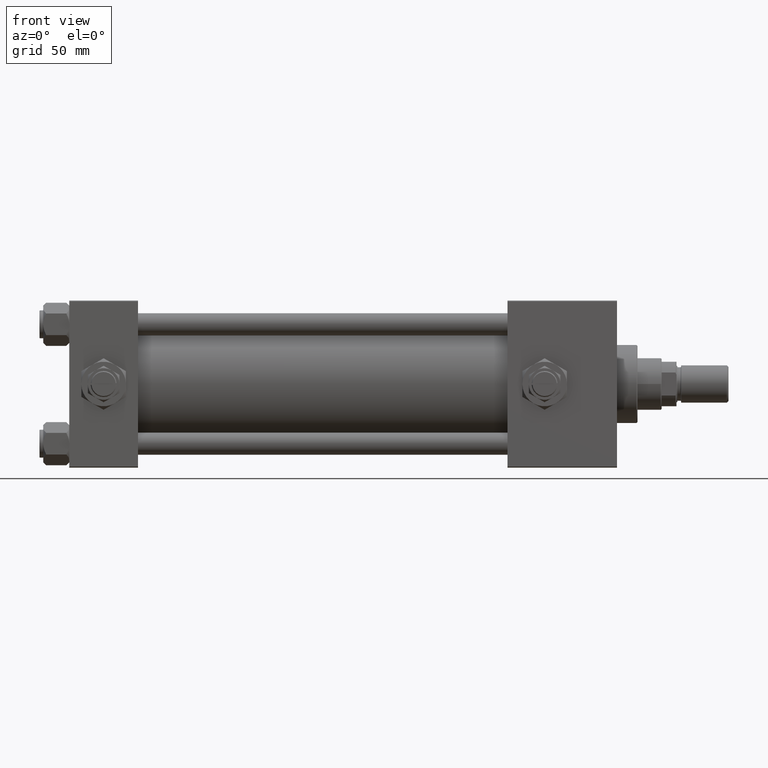
[diagram: clean part render]
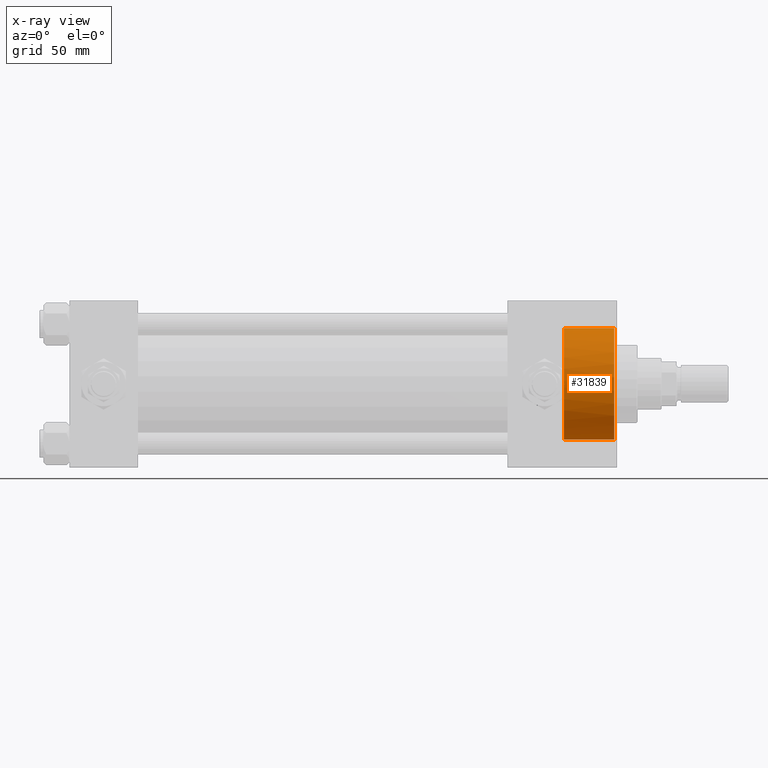
[diagram: x-ray — body ghosted, one internal face saturated and labeled with its STEP entity id]
A machine part, front view, then the same camera in x-ray: the body is ghosted and one INTERNAL B-rep face — a face not visible from any outside direction — is saturated and labeled: STEP entity #31839.
In plain terms, the highlighted cylindrical surface (partial cylindrical patch) has radius 30 mm, axis along (1, 0, 0).
Its self-contained STEP definition (entity closure, byte-faithful):
#211 = VERTEX_POINT ( 'NONE', #18865 ) ;
#1855 = AXIS2_PLACEMENT_3D ( 'NONE', #23550, #19545, #31843 ) ;
#1901 = VECTOR ( 'NONE', #18203, 1000.000000000000000 ) ;
#2330 = LINE ( 'NONE', #30181, #35492 ) ;
#4270 = DIRECTION ( 'NONE',  ( 0.000000000000000000, 0.000000000000000000, -1.000000000000000000 ) ) ;
#8178 = ORIENTED_EDGE ( 'NONE', *, *, #37019, .T. ) ;
#8541 = CARTESIAN_POINT ( 'NONE',  ( 266.3000000000000114, 0.000000000000000000, 0.000000000000000000 ) ) ;
#8814 = CYLINDRICAL_SURFACE ( 'NONE', #31918, 30.00000000000000000 ) ;
#8934 = AXIS2_PLACEMENT_3D ( 'NONE', #26214, #34506, #22211 ) ;
#9856 = CARTESIAN_POINT ( 'NONE',  ( 266.3000000000000114, -29.93759509379470529, 1.934011375354096840 ) ) ;
#12408 = B_SPLINE_CURVE_WITH_KNOTS ( 'NONE', 3,
 ( #19903, #51959, #36198, #31657, #39414 ),
 .UNSPECIFIED., .F., .F.,
 ( 4, 1, 4 ),
 ( 0.000000000000000000, 0.001934011375354099168, 0.003868022750708198336 ),
 .UNSPECIFIED. ) ;
#13359 = FACE_OUTER_BOUND ( 'NONE', #16168, .T. ) ;
#15498 = VERTEX_POINT ( 'NONE', #38951 ) ;
#15513 = ORIENTED_EDGE ( 'NONE', *, *, #45450, .T. ) ;
#16168 = EDGE_LOOP ( 'NONE', ( #35330, #8178, #43059, #39079, #25386, #15513 ) ) ;
#18203 = DIRECTION ( 'NONE',  ( 1.000000000000000000, -0.000000000000000000, -0.000000000000000000 ) ) ;
#18865 = CARTESIAN_POINT ( 'NONE',  ( 266.3000000000000114, -29.93759509379470529, -1.934011375354101059 ) ) ;
#19545 = DIRECTION ( 'NONE',  ( 1.000000000000000000, 0.000000000000000000, 0.000000000000000000 ) ) ;
#19827 = EDGE_CURVE ( 'NONE', #211, #23337, #28126, .T. ) ;
#19903 = CARTESIAN_POINT ( 'NONE',  ( 266.3000000000000114, -29.93759509379470529, -1.934011375354101059 ) ) ;
#21622 = VERTEX_POINT ( 'NONE', #47370 ) ;
#22211 = DIRECTION ( 'NONE',  ( 0.000000000000000000, 0.000000000000000000, -1.000000000000000000 ) ) ;
#23320 = CARTESIAN_POINT ( 'NONE',  ( 266.3000000000000114, 0.000000000000000000, -30.00000000000000000 ) ) ;
#23337 = VERTEX_POINT ( 'NONE', #23320 ) ;
#23550 = CARTESIAN_POINT ( 'NONE',  ( 293.5000000000000000, 0.000000000000000000, 0.000000000000000000 ) ) ;
#25386 = ORIENTED_EDGE ( 'NONE', *, *, #19827, .F. ) ;
#26214 = CARTESIAN_POINT ( 'NONE',  ( 266.3000000000000114, 0.000000000000000000, 0.000000000000000000 ) ) ;
#26361 = CARTESIAN_POINT ( 'NONE',  ( 293.5000000000000000, 0.000000000000000000, -30.00000000000000000 ) ) ;
#26742 = EDGE_CURVE ( 'NONE', #23337, #40574, #27268, .T. ) ;
#27268 = LINE ( 'NONE', #39029, #1901 ) ;
#28126 = CIRCLE ( 'NONE', #29824, 30.00000000000000000 ) ;
#29592 = EDGE_CURVE ( 'NONE', #21622, #40574, #30058, .T. ) ;
#29824 = AXIS2_PLACEMENT_3D ( 'NONE', #44135, #31321, #39607 ) ;
#30058 = CIRCLE ( 'NONE', #1855, 30.00000000000000000 ) ;
#30181 = CARTESIAN_POINT ( 'NONE',  ( 266.3000000000000114, 3.673940397442059178E-15, 30.00000000000000000 ) ) ;
#31321 = DIRECTION ( 'NONE',  ( 1.000000000000000000, 0.000000000000000000, 0.000000000000000000 ) ) ;
#31657 = CARTESIAN_POINT ( 'NONE',  ( 266.4210485436893237, -29.97924172559975986, 1.289340916902729894 ) ) ;
#31839 = ADVANCED_FACE ( 'NONE', ( #13359 ), #8814, .F. ) ;
#31843 = DIRECTION ( 'NONE',  ( 0.000000000000000000, 0.000000000000000000, 1.000000000000000000 ) ) ;
#31894 = VERTEX_POINT ( 'NONE', #9856 ) ;
#31918 = AXIS2_PLACEMENT_3D ( 'NONE', #8541, #41689, #4270 ) ;
#34506 = DIRECTION ( 'NONE',  ( 1.000000000000000000, 0.000000000000000000, 0.000000000000000000 ) ) ;
#35330 = ORIENTED_EDGE ( 'NONE', *, *, #35469, .F. ) ;
#35469 = EDGE_CURVE ( 'NONE', #15498, #31894, #40535, .T. ) ;
#35492 = VECTOR ( 'NONE', #51290, 1000.000000000000000 ) ;
#36198 = CARTESIAN_POINT ( 'NONE',  ( 266.5389514563106559, -30.02075827440024725, -6.505213034913026604E-16 ) ) ;
#37019 = EDGE_CURVE ( 'NONE', #15498, #21622, #2330, .T. ) ;
#38951 = CARTESIAN_POINT ( 'NONE',  ( 266.3000000000000114, 3.673940397442059178E-15, 30.00000000000000000 ) ) ;
#39029 = CARTESIAN_POINT ( 'NONE',  ( 266.3000000000000114, 0.000000000000000000, -30.00000000000000000 ) ) ;
#39079 = ORIENTED_EDGE ( 'NONE', *, *, #26742, .F. ) ;
#39414 = CARTESIAN_POINT ( 'NONE',  ( 266.3000000000000114, -29.93759509379470529, 1.934011375354096840 ) ) ;
#39607 = DIRECTION ( 'NONE',  ( 0.000000000000000000, 0.000000000000000000, -1.000000000000000000 ) ) ;
#40535 = CIRCLE ( 'NONE', #8934, 30.00000000000000000 ) ;
#40574 = VERTEX_POINT ( 'NONE', #26361 ) ;
#41689 = DIRECTION ( 'NONE',  ( 1.000000000000000000, -0.000000000000000000, -0.000000000000000000 ) ) ;
#43059 = ORIENTED_EDGE ( 'NONE', *, *, #29592, .T. ) ;
#44135 = CARTESIAN_POINT ( 'NONE',  ( 266.3000000000000114, 0.000000000000000000, 0.000000000000000000 ) ) ;
#45450 = EDGE_CURVE ( 'NONE', #211, #31894, #12408, .T. ) ;
#47370 = CARTESIAN_POINT ( 'NONE',  ( 293.5000000000000000, 3.673940397442059178E-15, 30.00000000000000000 ) ) ;
#51290 = DIRECTION ( 'NONE',  ( 1.000000000000000000, -0.000000000000000000, -0.000000000000000000 ) ) ;
#51959 = CARTESIAN_POINT ( 'NONE',  ( 266.4210485436893237, -29.97924172559974210, -1.289340916902734335 ) ) ;